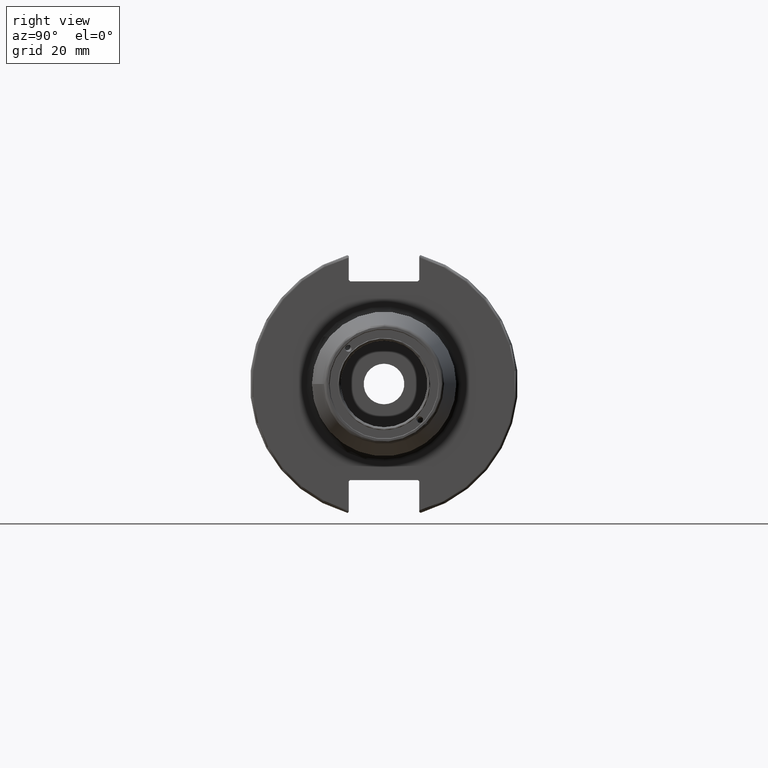
[diagram: clean part render]
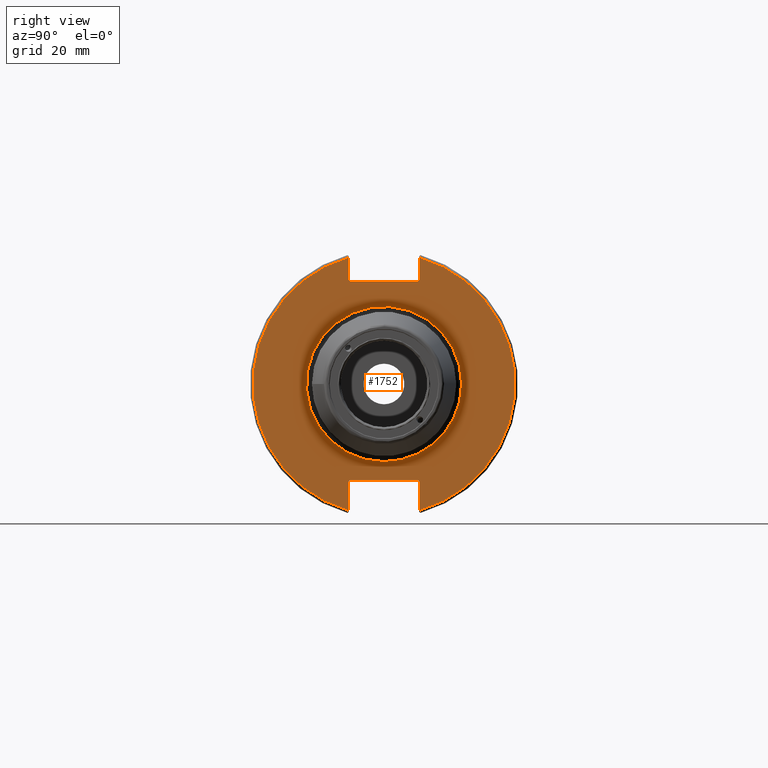
[diagram: same view with one face highlighted and labeled with its STEP entity id]
A machine part, right view. The second image highlights one B-rep face of the part: STEP entity #1752.
In plain terms, the highlighted planar face has unit normal (1, 0, 0).
Its self-contained STEP definition (entity closure, byte-faithful):
#112=FACE_BOUND('',#290,.T.);
#139=PLANE('',#1906);
#191=FACE_OUTER_BOUND('',#289,.T.);
#289=EDGE_LOOP('',(#1265,#1266,#1267,#1268,#1269,#1270,#1271,#1272,#1273,
#1274,#1275,#1276));
#290=EDGE_LOOP('',(#1277,#1278));
#394=LINE('',#2711,#492);
#395=LINE('',#2713,#493);
#396=LINE('',#2715,#494);
#397=LINE('',#2717,#495);
#398=LINE('',#2719,#496);
#399=LINE('',#2723,#497);
#400=LINE('',#2725,#498);
#401=LINE('',#2727,#499);
#402=LINE('',#2729,#500);
#403=LINE('',#2730,#501);
#492=VECTOR('',#2197,10.);
#493=VECTOR('',#2198,10.);
#494=VECTOR('',#2199,10.);
#495=VECTOR('',#2200,10.);
#496=VECTOR('',#2201,10.);
#497=VECTOR('',#2204,10.);
#498=VECTOR('',#2205,10.);
#499=VECTOR('',#2206,10.);
#500=VECTOR('',#2207,10.);
#501=VECTOR('',#2208,10.);
#612=CIRCLE('',#1901,28.5);
#613=CIRCLE('',#1902,28.5);
#616=CIRCLE('',#1907,48.2125);
#617=CIRCLE('',#1908,48.2125);
#733=VERTEX_POINT('',#2696);
#734=VERTEX_POINT('',#2698);
#736=VERTEX_POINT('',#2707);
#737=VERTEX_POINT('',#2708);
#738=VERTEX_POINT('',#2710);
#739=VERTEX_POINT('',#2712);
#740=VERTEX_POINT('',#2714);
#741=VERTEX_POINT('',#2716);
#742=VERTEX_POINT('',#2718);
#743=VERTEX_POINT('',#2720);
#744=VERTEX_POINT('',#2722);
#745=VERTEX_POINT('',#2724);
#746=VERTEX_POINT('',#2726);
#747=VERTEX_POINT('',#2728);
#940=EDGE_CURVE('',#733,#734,#612,.T.);
#941=EDGE_CURVE('',#734,#733,#613,.T.);
#945=EDGE_CURVE('',#736,#737,#616,.T.);
#946=EDGE_CURVE('',#736,#738,#394,.T.);
#947=EDGE_CURVE('',#739,#738,#395,.T.);
#948=EDGE_CURVE('',#739,#740,#396,.T.);
#949=EDGE_CURVE('',#741,#740,#397,.T.);
#950=EDGE_CURVE('',#741,#742,#398,.T.);
#951=EDGE_CURVE('',#743,#742,#617,.T.);
#952=EDGE_CURVE('',#743,#744,#399,.T.);
#953=EDGE_CURVE('',#745,#744,#400,.T.);
#954=EDGE_CURVE('',#745,#746,#401,.T.);
#955=EDGE_CURVE('',#747,#746,#402,.T.);
#956=EDGE_CURVE('',#747,#737,#403,.T.);
#1265=ORIENTED_EDGE('',*,*,#945,.F.);
#1266=ORIENTED_EDGE('',*,*,#946,.T.);
#1267=ORIENTED_EDGE('',*,*,#947,.F.);
#1268=ORIENTED_EDGE('',*,*,#948,.T.);
#1269=ORIENTED_EDGE('',*,*,#949,.F.);
#1270=ORIENTED_EDGE('',*,*,#950,.T.);
#1271=ORIENTED_EDGE('',*,*,#951,.F.);
#1272=ORIENTED_EDGE('',*,*,#952,.T.);
#1273=ORIENTED_EDGE('',*,*,#953,.F.);
#1274=ORIENTED_EDGE('',*,*,#954,.T.);
#1275=ORIENTED_EDGE('',*,*,#955,.F.);
#1276=ORIENTED_EDGE('',*,*,#956,.T.);
#1277=ORIENTED_EDGE('',*,*,#941,.F.);
#1278=ORIENTED_EDGE('',*,*,#940,.F.);
#1752=ADVANCED_FACE('',(#191,#112),#139,.T.);
#1901=AXIS2_PLACEMENT_3D('',#2699,#2182,#2183);
#1902=AXIS2_PLACEMENT_3D('',#2700,#2184,#2185);
#1906=AXIS2_PLACEMENT_3D('',#2706,#2193,#2194);
#1907=AXIS2_PLACEMENT_3D('',#2709,#2195,#2196);
#1908=AXIS2_PLACEMENT_3D('',#2721,#2202,#2203);
#2182=DIRECTION('center_axis',(1.,0.,0.));
#2183=DIRECTION('ref_axis',(0.,-1.,-1.22464679914735E-16));
#2184=DIRECTION('center_axis',(1.,0.,0.));
#2185=DIRECTION('ref_axis',(0.,-1.,-1.22464679914735E-16));
#2193=DIRECTION('center_axis',(1.,0.,0.));
#2194=DIRECTION('ref_axis',(0.,0.,-1.));
#2195=DIRECTION('center_axis',(-1.,0.,0.));
#2196=DIRECTION('ref_axis',(0.,1.,-6.12323399573677E-17));
#2197=DIRECTION('',(0.,0.,-1.));
#2198=DIRECTION('',(0.,0.707106781186549,0.707106781186546));
#2199=DIRECTION('',(0.,-1.,0.));
#2200=DIRECTION('',(0.,0.707106781186549,-0.707106781186546));
#2201=DIRECTION('',(0.,0.,1.));
#2202=DIRECTION('center_axis',(-1.,0.,0.));
#2203=DIRECTION('ref_axis',(0.,-1.,1.60812264967664E-16));
#2204=DIRECTION('',(0.,0.,1.));
#2205=DIRECTION('',(0.,-0.707106781186549,-0.707106781186546));
#2206=DIRECTION('',(0.,1.,0.));
#2207=DIRECTION('',(0.,-0.707106781186549,0.707106781186546));
#2208=DIRECTION('',(0.,0.,-1.));
#2696=CARTESIAN_POINT('',(19.05,-3.49024337756996E-15,-28.5));
#2698=CARTESIAN_POINT('',(19.05,28.5,6.98048675513991E-15));
#2699=CARTESIAN_POINT('Origin',(19.05,0.,0.));
#2700=CARTESIAN_POINT('Origin',(19.05,0.,0.));
#2706=CARTESIAN_POINT('Origin',(19.05,0.,0.));
#2707=CARTESIAN_POINT('',(19.05,12.95,46.4407434937254));
#2708=CARTESIAN_POINT('',(19.05,12.95,-46.4407434937254));
#2709=CARTESIAN_POINT('Origin',(19.05,0.,0.));
#2710=CARTESIAN_POINT('',(19.05,12.95,38.219));
#2711=CARTESIAN_POINT('',(19.05,12.95,18.8595));
#2712=CARTESIAN_POINT('',(19.05,12.45,37.719));
#2713=CARTESIAN_POINT('',(19.05,0.0327499999999836,25.30175));
#2714=CARTESIAN_POINT('',(19.05,-12.45,37.719));
#2715=CARTESIAN_POINT('',(19.05,0.,37.719));
#2716=CARTESIAN_POINT('',(19.05,-12.95,38.219));
#2717=CARTESIAN_POINT('',(19.05,-0.0327499999999817,25.30175));
#2718=CARTESIAN_POINT('',(19.05,-12.95,46.4407434937254));
#2719=CARTESIAN_POINT('',(19.05,-12.95,18.8595));
#2720=CARTESIAN_POINT('',(19.05,-12.95,-46.4407434937254));
#2721=CARTESIAN_POINT('Origin',(19.05,0.,0.));
#2722=CARTESIAN_POINT('',(19.05,-12.95,-35.806));
#2723=CARTESIAN_POINT('',(19.05,-12.95,-17.653));
#2724=CARTESIAN_POINT('',(19.05,-12.45,-35.306));
#2725=CARTESIAN_POINT('',(19.05,-0.635999999999989,-23.492));
#2726=CARTESIAN_POINT('',(19.05,12.45,-35.306));
#2727=CARTESIAN_POINT('',(19.05,-3.33066907387547E-15,-35.306));
#2728=CARTESIAN_POINT('',(19.05,12.95,-35.806));
#2729=CARTESIAN_POINT('',(19.05,0.635999999999982,-23.492));
#2730=CARTESIAN_POINT('',(19.05,12.95,-17.653));